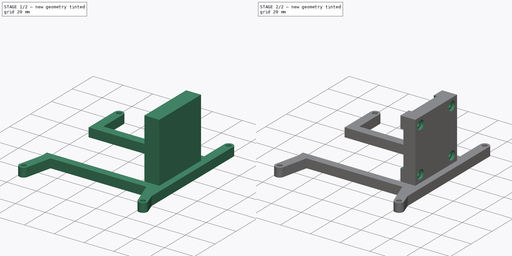
[diagram: build sequence overview — one tinted view per stage of 2, left to right]
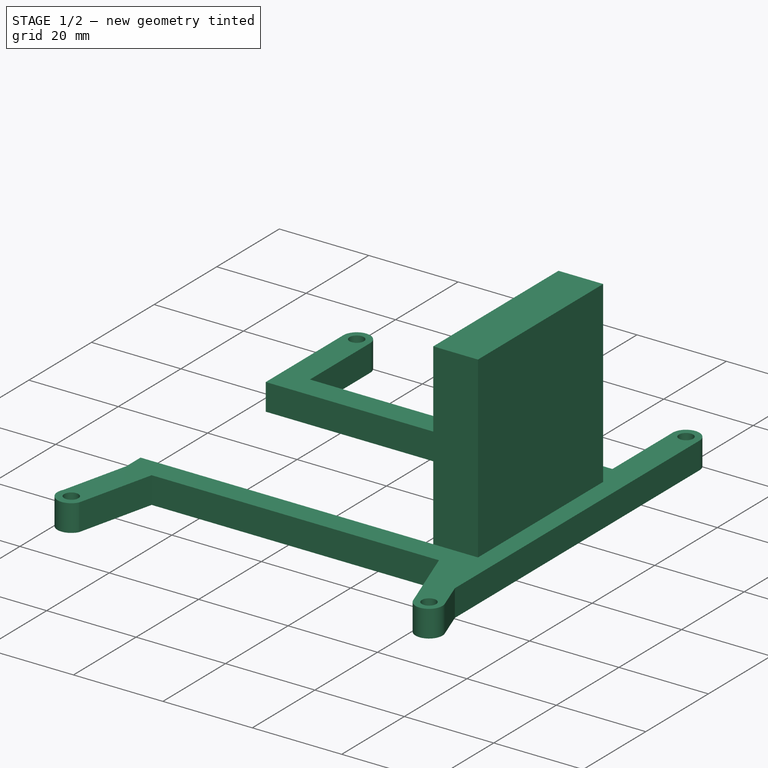
[diagram: stage 1 of 2 — iso view after this stage's code; geometry added in this stage tinted green]
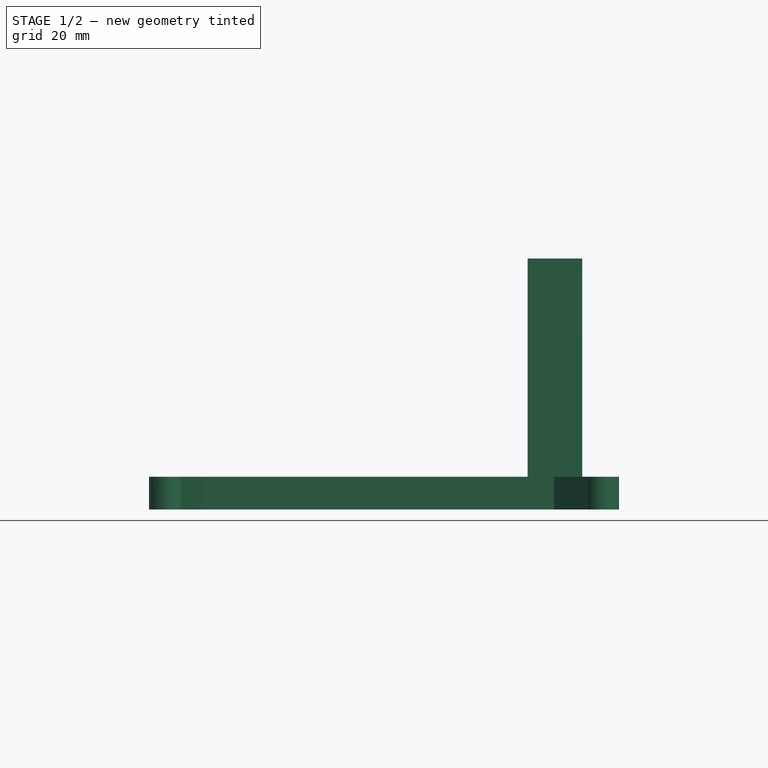
[diagram: stage 1 of 2 — front view after this stage's code; geometry added in this stage tinted green]
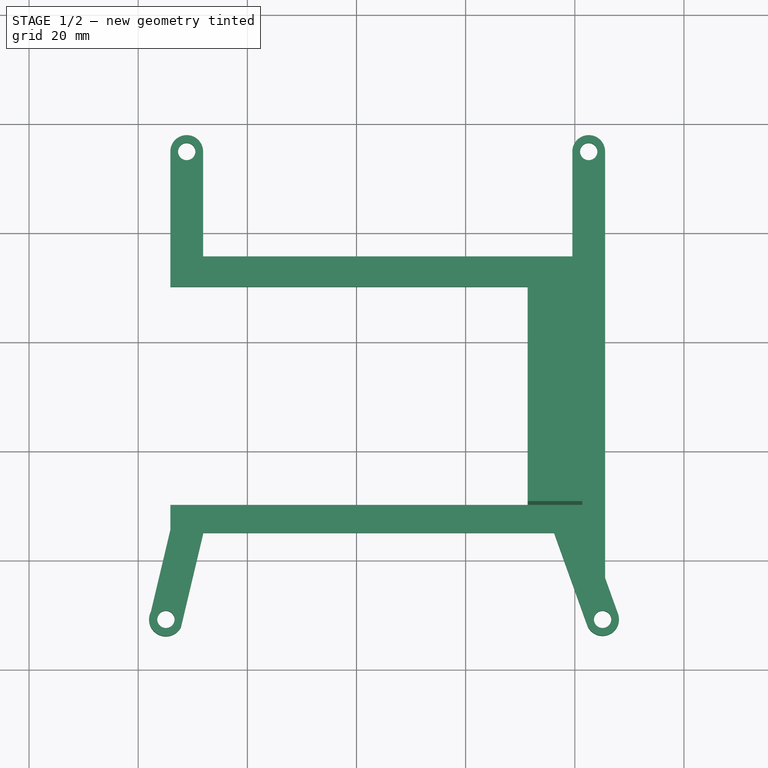
[diagram: stage 1 of 2 — top view after this stage's code; geometry added in this stage tinted green]
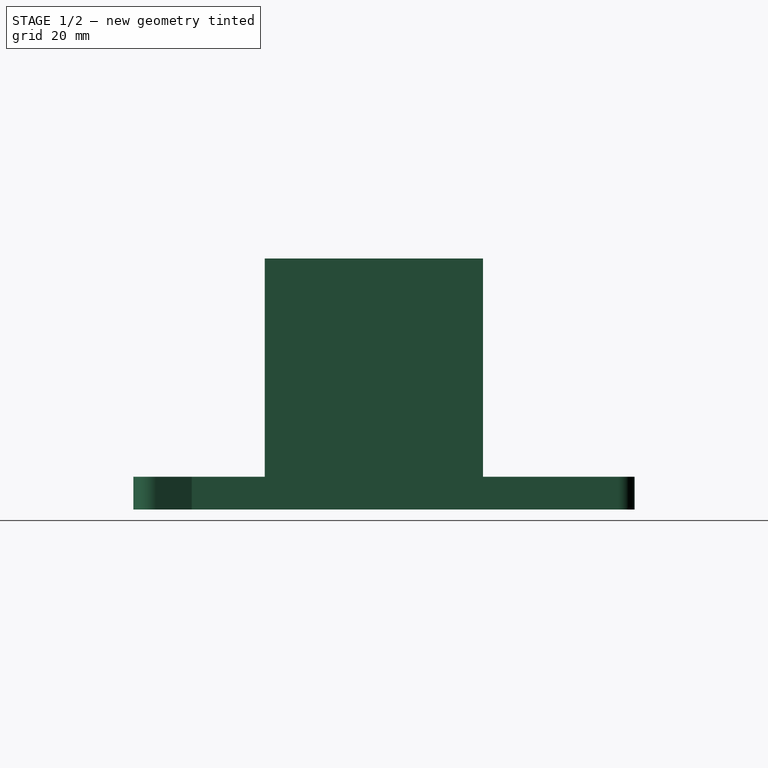
[diagram: stage 1 of 2 — right view after this stage's code; geometry added in this stage tinted green]
FCSTD DOCUMENT  (FreeCAD 0.18R16158 (Git))
Label: cam_holder_arms
License: All rights reserved
LicenseURL: http://en.wikipedia.org/wiki/All_rights_reserved
objects: Part::Feature×8, App::Part×6, Sketcher::SketchObject×6, PartDesign::Pad×2, PartDesign::Pocket×1, PartDesign::Hole×1, PartDesign::Body×1
note: 23 computed .brp shape members not serialized (recipe doc carries the construction recipe); baked Part::Feature solids carry a one-line shape summary decoded from their .brp

FEATURE [Part::Feature] Part__Feature605  label="COMPOUND032"
  shape: bbox 66.55 x 8.509 x 4.953 mm, 478 faces (baked)
FEATURE [Part::Feature] Part__Feature606  label="COMPOUND033"
  shape: bbox 65.79 x 19.68 x 4.699 mm, 1046 faces (baked)
FEATURE [Part::Feature] Part__Feature607  label="COMPOUND034"
  shape: bbox 66.04 x 2.54 x 5.08 mm, 682 faces (baked)
FEATURE [App::Part] COMPOUND008  label="COMPOUND035"
  Group = -> [Part__Feature605,Part__Feature606,Part__Feature607]
  Origin = -> Origin462
FEATURE [App::Part] ESQ_126_39_G_D004  label="ESQ-126-39-G-D004"
  Group = -> [COMPOUND008]
  Origin = -> Origin463
  Placement = pos=(45.72,-11.45,4.25) rot=(0,0.707107,0.707107;3.14159rad)
FEATURE [Part::Feature] Part__Feature608  label="COMPOUND036"
  shape: bbox 66.55 x 8.509 x 4.953 mm, 478 faces (baked)
FEATURE [Part::Feature] Part__Feature609  label="COMPOUND037"
  shape: bbox 65.79 x 19.68 x 4.699 mm, 1046 faces (baked)
FEATURE [Part::Feature] Part__Feature610  label="COMPOUND038"
  shape: bbox 66.04 x 2.54 x 5.08 mm, 682 faces (baked)
FEATURE [App::Part] COMPOUND009  label="COMPOUND039"
  Group = -> [Part__Feature608,Part__Feature609,Part__Feature610]
  Origin = -> Origin464
FEATURE [App::Part] ESQ_126_39_G_D005  label="ESQ-126-39-G-D005"
  Group = -> [COMPOUND009]
  Origin = -> Origin465
  Placement = pos=(45.72,-6.37,4.25) rot=(0,0.707107,0.707107;3.14159rad)
FEATURE [Part::Feature] Part__Feature611  label="COMPOUND040"
  shape: bbox 90.17 x 95.89 x 1.6 mm, 150 faces (baked)
FEATURE [App::Part] Open_CASCADE_STEP_translator_7_4_1002  label="devboard_blank"
  Group = -> [ESQ_126_39_G_D004,ESQ_126_39_G_D005,Part__Feature611]
  Origin = -> Origin466
  Placement = pos=(-49,-23,78) rot=(0.57735,-0.57735,-0.57735;4.18879rad)
FEATURE [Sketcher::SketchObject] Sketch  label="csk"
  sketch-geometry (148):
    g0: LineSegment StartX=1.92 StartY=-38.29 StartZ=0 EndX=1.92 EndY=-56.88 EndZ=0
    g1: ArcOfCircle CenterX=0.72 CenterY=-38.29 CenterZ=0 NormalX=0 NormalY=0 NormalZ=1 AngleXU=0 Radius=1.2 StartAngle=0 EndAngle=1.5708
    g2: ArcOfCircle CenterX=0.72 CenterY=-56.88 CenterZ=0 NormalX=0 NormalY=0 NormalZ=1 AngleXU=0 Radius=1.2 StartAngle=4.71239 EndAngle=6.28319
    g3: LineSegment StartX=0.72 StartY=-58.08 StartZ=0 EndX=0.7 EndY=-58.08 EndZ=0
    g4: ArcOfCircle CenterX=0.7 CenterY=-58.78 CenterZ=0 NormalX=0 NormalY=0 NormalZ=1 AngleXU=0 Radius=0.7 StartAngle=1.5708 EndAngle=3.14159
    g5: LineSegment StartX=-2.9e-15 StartY=-58.78 StartZ=0 EndX=0 EndY=-94.69 EndZ=0
    g6: ArcOfCircle CenterX=1.2 CenterY=-94.69 CenterZ=0 NormalX=0 NormalY=0 NormalZ=1 AngleXU=0 Radius=1.2 StartAngle=3.14159 EndAngle=4.71239
    g7: LineSegment StartX=1.2 StartY=-95.89 StartZ=0 EndX=35.47 EndY=-95.89 EndZ=0
    g8: ArcOfCircle CenterX=35.47 CenterY=-94.69 CenterZ=0 NormalX=0 NormalY=0 NormalZ=1 AngleXU=0 Radius=1.2 StartAngle=4.71239 EndAngle=6.28319
    g9: LineSegment StartX=36.67 StartY=-94.69 StartZ=0 EndX=36.67 EndY=-94.17 EndZ=0
    g10: ArcOfCircle CenterX=37.87 CenterY=-94.17 CenterZ=0 NormalX=0 NormalY=0 NormalZ=1 AngleXU=0 Radius=1.2 StartAngle=1.5708 EndAngle=3.14159
    g11: LineSegment StartX=37.87 StartY=-92.97 StartZ=0 EndX=55.19 EndY=-92.97 EndZ=0
    g12: ArcOfCircle CenterX=55.19 CenterY=-94.17 CenterZ=0 NormalX=0 NormalY=0 NormalZ=1 AngleXU=0 Radius=1.2 StartAngle=0 EndAngle=1.5708
    g13: LineSegment StartX=56.39 StartY=-94.17 StartZ=0 EndX=56.39 EndY=-94.69 EndZ=0
    g14: ArcOfCircle CenterX=57.59 CenterY=-94.69 CenterZ=0 NormalX=0 NormalY=0 NormalZ=1 AngleXU=0 Radius=1.2 StartAngle=3.14159 EndAngle=4.71239
    g15: LineSegment StartX=57.59 StartY=-95.89 StartZ=0 EndX=88.97 EndY=-95.89 EndZ=0
    g16: ArcOfCircle CenterX=88.97 CenterY=-94.69 CenterZ=0 NormalX=0 NormalY=0 NormalZ=1 AngleXU=0 Radius=1.2 StartAngle=4.71239 EndAngle=6.28319
    g17: LineSegment StartX=90.17 StartY=-94.69 StartZ=0 EndX=90.17 EndY=-86.995 EndZ=0
    g18: LineSegment StartX=90.17 StartY=-86.995 StartZ=0 EndX=88.392 EndY=-85.217 EndZ=0
    g19: LineSegment StartX=88.392 StartY=-85.217 StartZ=0 EndX=88.392 EndY=-50.038 EndZ=0
    g20: LineSegment StartX=88.392 StartY=-50.038 StartZ=0 EndX=90.17 EndY=-48.26 EndZ=0
    g21: LineSegment StartX=90.17 StartY=-48.26 StartZ=0 EndX=90.17 EndY=-24.19 EndZ=0
    g22: ArcOfCircle CenterX=88.97 CenterY=-24.19 CenterZ=0 NormalX=0 NormalY=0 NormalZ=1 AngleXU=0 Radius=1.2 StartAngle=0 EndAngle=1.5708
    g23: LineSegment StartX=88.97 StartY=-22.99 StartZ=0 EndX=86.8 EndY=-22.99 EndZ=0
    g24: ArcOfCircle CenterX=86.8 CenterY=-21.79 CenterZ=0 NormalX=0 NormalY=0 NormalZ=1 AngleXU=0 Radius=1.2 StartAngle=3.14159 EndAngle=4.71239
    g25: LineSegment StartX=85.6 StartY=-21.79 StartZ=0 EndX=85.6 EndY=-1.2 EndZ=0
    g26: ArcOfCircle CenterX=84.4 CenterY=-1.2 CenterZ=0 NormalX=0 NormalY=0 NormalZ=1 AngleXU=0 Radius=1.2 StartAngle=0 EndAngle=1.5708
    g27: LineSegment StartX=84.4 StartY=-1.13e-14 StartZ=0 EndX=57.59 EndY=-1e-16 EndZ=0
    g28: ArcOfCircle CenterX=57.59 CenterY=-1.2 CenterZ=0 NormalX=0 NormalY=0 NormalZ=1 AngleXU=0 Radius=1.2 StartAngle=1.5708 EndAngle=3.14159
    g29: LineSegment StartX=56.39 StartY=-1.2 StartZ=0 EndX=56.39 EndY=-1.73 EndZ=0
    g30: ArcOfCircle CenterX=55.19 CenterY=-1.73 CenterZ=0 NormalX=0 NormalY=0 NormalZ=1 AngleXU=0 Radius=1.2 StartAngle=4.71239 EndAngle=6.28319
    g31: LineSegment StartX=55.19 StartY=-2.93 StartZ=0 EndX=37.27 EndY=-2.93 EndZ=0
    g32: ArcOfCircle CenterX=37.27 CenterY=-1.73 CenterZ=0 NormalX=0 NormalY=0 NormalZ=1 AngleXU=0 Radius=1.2 StartAngle=3.14159 EndAngle=4.71239
    g33: LineSegment StartX=36.07 StartY=-1.73 StartZ=0 EndX=36.07 EndY=-1.2 EndZ=0
    g34: ArcOfCircle CenterX=34.87 CenterY=-1.2 CenterZ=0 NormalX=0 NormalY=0 NormalZ=1 AngleXU=0 Radius=1.2 StartAngle=0 EndAngle=1.5708
    g35: LineSegment StartX=34.87 StartY=2.9e-15 StartZ=0 EndX=1.2 EndY=-1e-16 EndZ=0
    g36: ArcOfCircle CenterX=1.2 CenterY=-1.2 CenterZ=0 NormalX=0 NormalY=0 NormalZ=1 AngleXU=0 Radius=1.2 StartAngle=1.5708 EndAngle=3.14159
    g37: LineSegment StartX=0 StartY=-1.2 StartZ=0 EndX=0 EndY=-36.39 EndZ=0
    g38: ArcOfCircle CenterX=0.7 CenterY=-36.39 CenterZ=0 NormalX=0 NormalY=0 NormalZ=1 AngleXU=0 Radius=0.7 StartAngle=3.14159 EndAngle=4.71239
    g39: LineSegment StartX=0.7 StartY=-37.09 StartZ=0 EndX=0.72 EndY=-37.09 EndZ=0
    g40: Circle CenterX=5.08 CenterY=-90.81 CenterZ=0 NormalX=0 NormalY=0 NormalZ=-1 AngleXU=0 Radius=1.59
    g41: Circle CenterX=85.09 CenterY=-90.81 CenterZ=0 NormalX=0 NormalY=0 NormalZ=-1 AngleXU=0 Radius=1.59
    g42: Circle CenterX=8.89 CenterY=-5.08 CenterZ=0 NormalX=0 NormalY=0 NormalZ=-1 AngleXU=0 Radius=1.59
    g43: Circle CenterX=13.97 CenterY=-12.7 CenterZ=0 NormalX=0 NormalY=0 NormalZ=-1 AngleXU=0 Radius=0.5
    g44: Circle CenterX=16.51 CenterY=-12.7 CenterZ=0 NormalX=0 NormalY=0 NormalZ=-1 AngleXU=0 Radius=0.5
    g45: Circle CenterX=19.05 CenterY=-12.7 CenterZ=0 NormalX=0 NormalY=0 NormalZ=-1 AngleXU=0 Radius=0.5
    g46: Circle CenterX=13.97 CenterY=-10.16 CenterZ=0 NormalX=0 NormalY=0 NormalZ=-1 AngleXU=0 Radius=0.5
    g47: Circle CenterX=16.51 CenterY=-10.16 CenterZ=0 NormalX=0 NormalY=0 NormalZ=-1 AngleXU=0 Radius=0.5
    g48: Circle CenterX=19.05 CenterY=-10.16 CenterZ=0 NormalX=0 NormalY=0 NormalZ=-1 AngleXU=0 Radius=0.5
    g49: Circle CenterX=21.59 CenterY=-12.7 CenterZ=0 NormalX=0 NormalY=0 NormalZ=-1 AngleXU=0 Radius=0.5
    g50: Circle CenterX=24.13 CenterY=-12.7 CenterZ=0 NormalX=0 NormalY=0 NormalZ=-1 AngleXU=0 Radius=0.5
    g51: Circle CenterX=21.59 CenterY=-10.16 CenterZ=0 NormalX=0 NormalY=0 NormalZ=-1 AngleXU=0 Radius=0.5
    g52: Circle CenterX=24.13 CenterY=-10.16 CenterZ=0 NormalX=0 NormalY=0 NormalZ=-1 AngleXU=0 Radius=0.5
    g53: Circle CenterX=13.97 CenterY=-7.62 CenterZ=0 NormalX=0 NormalY=0 NormalZ=-1 AngleXU=0 Radius=0.5
    g54: Circle CenterX=16.51 CenterY=-7.62 CenterZ=0 NormalX=0 NormalY=0 NormalZ=-1 AngleXU=0 Radius=0.5
    g55: Circle CenterX=19.05 CenterY=-7.62 CenterZ=0 NormalX=0 NormalY=0 NormalZ=-1 AngleXU=0 Radius=0.5
    g56: Circle CenterX=13.97 CenterY=-5.08 CenterZ=0 NormalX=0 NormalY=0 NormalZ=-1 AngleXU=0 Radius=0.5
    g57: Circle CenterX=16.51 CenterY=-5.08 CenterZ=0 NormalX=0 NormalY=0 NormalZ=-1 AngleXU=0 Radius=0.5
    g58: Circle CenterX=19.05 CenterY=-5.08 CenterZ=0 NormalX=0 NormalY=0 NormalZ=-1 AngleXU=0 Radius=0.5
    g59: Circle CenterX=21.59 CenterY=-7.62 CenterZ=0 NormalX=0 NormalY=0 NormalZ=-1 AngleXU=0 Radius=0.5
    g60: Circle CenterX=24.13 CenterY=-7.62 CenterZ=0 NormalX=0 NormalY=0 NormalZ=-1 AngleXU=0 Radius=0.5
    g61: Circle CenterX=21.59 CenterY=-5.08 CenterZ=0 NormalX=0 NormalY=0 NormalZ=-1 AngleXU=0 Radius=0.5
    g62: Circle CenterX=24.13 CenterY=-5.08 CenterZ=0 NormalX=0 NormalY=0 NormalZ=-1 AngleXU=0 Radius=0.5
    g63: Circle CenterX=26.67 CenterY=-12.7 CenterZ=0 NormalX=0 NormalY=0 NormalZ=-1 AngleXU=0 Radius=0.5
    g64: Circle CenterX=29.21 CenterY=-12.7 CenterZ=0 NormalX=0 NormalY=0 NormalZ=-1 AngleXU=0 Radius=0.5
    g65: Circle CenterX=26.67 CenterY=-10.16 CenterZ=0 NormalX=0 NormalY=0 NormalZ=-1 AngleXU=0 Radius=0.5
    g66: Circle CenterX=29.21 CenterY=-10.16 CenterZ=0 NormalX=0 NormalY=0 NormalZ=-1 AngleXU=0 Radius=0.5
    g67: Circle CenterX=31.75 CenterY=-12.7 CenterZ=0 NormalX=0 NormalY=0 NormalZ=-1 AngleXU=0 Radius=0.5
    g68: Circle CenterX=34.29 CenterY=-12.7 CenterZ=0 NormalX=0 NormalY=0 NormalZ=-1 AngleXU=0 Radius=0.5
    g69: Circle CenterX=31.75 CenterY=-10.16 CenterZ=0 NormalX=0 NormalY=0 NormalZ=-1 AngleXU=0 Radius=0.5
    g70: Circle CenterX=34.29 CenterY=-10.16 CenterZ=0 NormalX=0 NormalY=0 NormalZ=-1 AngleXU=0 Radius=0.5
    g71: Circle CenterX=26.67 CenterY=-7.62 CenterZ=0 NormalX=0 NormalY=0 NormalZ=-1 AngleXU=0 Radius=0.5
    g72: Circle CenterX=29.21 CenterY=-7.62 CenterZ=0 NormalX=0 NormalY=0 NormalZ=-1 AngleXU=0 Radius=0.5
    g73: Circle CenterX=26.67 CenterY=-5.08 CenterZ=0 NormalX=0 NormalY=0 NormalZ=-1 AngleXU=0 Radius=0.5
    g74: Circle CenterX=29.21 CenterY=-5.08 CenterZ=0 NormalX=0 NormalY=0 NormalZ=-1 AngleXU=0 Radius=0.5
    g75: Circle CenterX=31.75 CenterY=-7.62 CenterZ=0 NormalX=0 NormalY=0 NormalZ=-1 AngleXU=0 Radius=0.5
    g76: Circle CenterX=34.29 CenterY=-7.62 CenterZ=0 NormalX=0 NormalY=0 NormalZ=-1 AngleXU=0 Radius=0.5
    g77: Circle CenterX=31.75 CenterY=-5.08 CenterZ=0 NormalX=0 NormalY=0 NormalZ=-1 AngleXU=0 Radius=0.5
    g78: Circle CenterX=34.29 CenterY=-5.08 CenterZ=0 NormalX=0 NormalY=0 NormalZ=-1 AngleXU=0 Radius=0.5
    g79: Circle CenterX=36.83 CenterY=-12.7 CenterZ=0 NormalX=0 NormalY=0 NormalZ=-1 AngleXU=0 Radius=0.5
    g80: Circle CenterX=39.37 CenterY=-12.7 CenterZ=0 NormalX=0 NormalY=0 NormalZ=-1 AngleXU=0 Radius=0.5
    g81: Circle CenterX=36.83 CenterY=-10.16 CenterZ=0 NormalX=0 NormalY=0 NormalZ=-1 AngleXU=0 Radius=0.5
    g82: Circle CenterX=39.37 CenterY=-10.16 CenterZ=0 NormalX=0 NormalY=0 NormalZ=-1 AngleXU=0 Radius=0.5
    g83: Circle CenterX=41.91 CenterY=-12.7 CenterZ=0 NormalX=0 NormalY=0 NormalZ=-1 AngleXU=0 Radius=0.5
    g84: Circle CenterX=44.45 CenterY=-12.7 CenterZ=0 NormalX=0 NormalY=0 NormalZ=-1 AngleXU=0 Radius=0.5
    g85: Circle CenterX=41.91 CenterY=-10.16 CenterZ=0 NormalX=0 NormalY=0 NormalZ=-1 AngleXU=0 Radius=0.5
    g86: Circle CenterX=44.45 CenterY=-10.16 CenterZ=0 NormalX=0 NormalY=0 NormalZ=-1 AngleXU=0 Radius=0.5
    g87: Circle CenterX=36.83 CenterY=-7.62 CenterZ=0 NormalX=0 NormalY=0 NormalZ=-1 AngleXU=0 Radius=0.5
    g88: Circle CenterX=39.37 CenterY=-7.62 CenterZ=0 NormalX=0 NormalY=0 NormalZ=-1 AngleXU=0 Radius=0.5
    g89: Circle CenterX=36.83 CenterY=-5.08 CenterZ=0 NormalX=0 NormalY=0 NormalZ=-1 AngleXU=0 Radius=0.5
    g90: Circle CenterX=39.37 CenterY=-5.08 CenterZ=0 NormalX=0 NormalY=0 NormalZ=-1 AngleXU=0 Radius=0.5
    g91: Circle CenterX=41.91 CenterY=-7.62 CenterZ=0 NormalX=0 NormalY=0 NormalZ=-1 AngleXU=0 Radius=0.5
    g92: Circle CenterX=44.45 CenterY=-7.62 CenterZ=0 NormalX=0 NormalY=0 NormalZ=-1 AngleXU=0 Radius=0.5
    g93: Circle CenterX=41.91 CenterY=-5.08 CenterZ=0 NormalX=0 NormalY=0 NormalZ=-1 AngleXU=0 Radius=0.5
    g94: Circle CenterX=44.45 CenterY=-5.08 CenterZ=0 NormalX=0 NormalY=0 NormalZ=-1 AngleXU=0 Radius=0.5
    g95: Circle CenterX=46.99 CenterY=-12.7 CenterZ=0 NormalX=0 NormalY=0 NormalZ=-1 AngleXU=0 Radius=0.5
    g96: Circle CenterX=49.53 CenterY=-12.7 CenterZ=0 NormalX=0 NormalY=0 NormalZ=-1 AngleXU=0 Radius=0.5
    g97: Circle CenterX=46.99 CenterY=-10.16 CenterZ=0 NormalX=0 NormalY=0 NormalZ=-1 AngleXU=0 Radius=0.5
    g98: Circle CenterX=49.53 CenterY=-10.16 CenterZ=0 NormalX=0 NormalY=0 NormalZ=-1 AngleXU=0 Radius=0.5
    g99: Circle CenterX=52.07 CenterY=-12.7 CenterZ=0 NormalX=0 NormalY=0 NormalZ=-1 AngleXU=0 Radius=0.5
    g100: Circle CenterX=54.61 CenterY=-12.7 CenterZ=0 NormalX=0 NormalY=0 NormalZ=-1 AngleXU=0 Radius=0.5
    g101: Circle CenterX=52.07 CenterY=-10.16 CenterZ=0 NormalX=0 NormalY=0 NormalZ=-1 AngleXU=0 Radius=0.5
    g102: Circle CenterX=54.61 CenterY=-10.16 CenterZ=0 NormalX=0 NormalY=0 NormalZ=-1 AngleXU=0 Radius=0.5
    g103: Circle CenterX=46.99 CenterY=-7.62 CenterZ=0 NormalX=0 NormalY=0 NormalZ=-1 AngleXU=0 Radius=0.5
    g104: Circle CenterX=49.53 CenterY=-7.62 CenterZ=0 NormalX=0 NormalY=0 NormalZ=-1 AngleXU=0 Radius=0.5
    g105: Circle CenterX=46.99 CenterY=-5.08 CenterZ=0 NormalX=0 NormalY=0 NormalZ=-1 AngleXU=0 Radius=0.5
    g106: Circle CenterX=49.53 CenterY=-5.08 CenterZ=0 NormalX=0 NormalY=0 NormalZ=-1 AngleXU=0 Radius=0.5
    g107: Circle CenterX=52.07 CenterY=-7.62 CenterZ=0 NormalX=0 NormalY=0 NormalZ=-1 AngleXU=0 Radius=0.5
    g108: Circle CenterX=54.61 CenterY=-7.62 CenterZ=0 NormalX=0 NormalY=0 NormalZ=-1 AngleXU=0 Radius=0.5
    g109: Circle CenterX=52.07 CenterY=-5.08 CenterZ=0 NormalX=0 NormalY=0 NormalZ=-1 AngleXU=0 Radius=0.5
    g110: Circle CenterX=54.61 CenterY=-5.08 CenterZ=0 NormalX=0 NormalY=0 NormalZ=-1 AngleXU=0 Radius=0.5
    g111: Circle CenterX=57.15 CenterY=-12.7 CenterZ=0 NormalX=0 NormalY=0 NormalZ=-1 AngleXU=0 Radius=0.5
    g112: Circle CenterX=59.69 CenterY=-12.7 CenterZ=0 NormalX=0 NormalY=0 NormalZ=-1 AngleXU=0 Radius=0.5
    g113: Circle CenterX=57.15 CenterY=-10.16 CenterZ=0 NormalX=0 NormalY=0 NormalZ=-1 AngleXU=0 Radius=0.5
    g114: Circle CenterX=59.69 CenterY=-10.16 CenterZ=0 NormalX=0 NormalY=0 NormalZ=-1 AngleXU=0 Radius=0.5
    g115: Circle CenterX=62.23 CenterY=-12.7 CenterZ=0 NormalX=0 NormalY=0 NormalZ=-1 AngleXU=0 Radius=0.5
    g116: Circle CenterX=64.77 CenterY=-12.7 CenterZ=0 NormalX=0 NormalY=0 NormalZ=-1 AngleXU=0 Radius=0.5
    g117: Circle CenterX=62.23 CenterY=-10.16 CenterZ=0 NormalX=0 NormalY=0 NormalZ=-1 AngleXU=0 Radius=0.5
    g118: Circle CenterX=64.77 CenterY=-10.16 CenterZ=0 NormalX=0 NormalY=0 NormalZ=-1 AngleXU=0 Radius=0.5
    g119: Circle CenterX=57.15 CenterY=-7.62 CenterZ=0 NormalX=0 NormalY=0 NormalZ=-1 AngleXU=0 Radius=0.5
    g120: Circle CenterX=59.69 CenterY=-7.62 CenterZ=0 NormalX=0 NormalY=0 NormalZ=-1 AngleXU=0 Radius=0.5
    g121: Circle CenterX=57.15 CenterY=-5.08 CenterZ=0 NormalX=0 NormalY=0 NormalZ=-1 AngleXU=0 Radius=0.5
    g122: Circle CenterX=59.69 CenterY=-5.08 CenterZ=0 NormalX=0 NormalY=0 NormalZ=-1 AngleXU=0 Radius=0.5
    g123: Circle CenterX=62.23 CenterY=-7.62 CenterZ=0 NormalX=0 NormalY=0 NormalZ=-1 AngleXU=0 Radius=0.5
    g124: Circle CenterX=64.77 CenterY=-7.62 CenterZ=0 NormalX=0 NormalY=0 NormalZ=-1 AngleXU=0 Radius=0.5
    g125: Circle CenterX=62.23 CenterY=-5.08 CenterZ=0 NormalX=0 NormalY=0 NormalZ=-1 AngleXU=0 Radius=0.5
    g126: Circle CenterX=64.77 CenterY=-5.08 CenterZ=0 NormalX=0 NormalY=0 NormalZ=-1 AngleXU=0 Radius=0.5
    g127: Circle CenterX=67.31 CenterY=-12.7 CenterZ=0 NormalX=0 NormalY=0 NormalZ=-1 AngleXU=0 Radius=0.5
    g128: Circle CenterX=69.85 CenterY=-12.7 CenterZ=0 NormalX=0 NormalY=0 NormalZ=-1 AngleXU=0 Radius=0.5
    g129: Circle CenterX=67.31 CenterY=-10.16 CenterZ=0 NormalX=0 NormalY=0 NormalZ=-1 AngleXU=0 Radius=0.5
    g130: Circle CenterX=69.85 CenterY=-10.16 CenterZ=0 NormalX=0 NormalY=0 NormalZ=-1 AngleXU=0 Radius=0.5
    g131: Circle CenterX=72.39 CenterY=-12.7 CenterZ=0 NormalX=0 NormalY=0 NormalZ=-1 AngleXU=0 Radius=0.5
    g132: Circle CenterX=74.93 CenterY=-12.7 CenterZ=0 NormalX=0 NormalY=0 NormalZ=-1 AngleXU=0 Radius=0.5
    g133: Circle CenterX=72.39 CenterY=-10.16 CenterZ=0 NormalX=0 NormalY=0 NormalZ=-1 AngleXU=0 Radius=0.5
    g134: Circle CenterX=74.93 CenterY=-10.16 CenterZ=0 NormalX=0 NormalY=0 NormalZ=-1 AngleXU=0 Radius=0.5
    g135: Circle CenterX=67.31 CenterY=-7.62 CenterZ=0 NormalX=0 NormalY=0 NormalZ=-1 AngleXU=0 Radius=0.5
    g136: Circle CenterX=69.85 CenterY=-7.62 CenterZ=0 NormalX=0 NormalY=0 NormalZ=-1 AngleXU=0 Radius=0.5
    g137: Circle CenterX=67.31 CenterY=-5.08 CenterZ=0 NormalX=0 NormalY=0 NormalZ=-1 AngleXU=0 Radius=0.5
    g138: Circle CenterX=69.85 CenterY=-5.08 CenterZ=0 NormalX=0 NormalY=0 NormalZ=-1 AngleXU=0 Radius=0.5
    g139: Circle CenterX=72.39 CenterY=-7.62 CenterZ=0 NormalX=0 NormalY=0 NormalZ=-1 AngleXU=0 Radius=0.5
    g140: Circle CenterX=74.93 CenterY=-7.62 CenterZ=0 NormalX=0 NormalY=0 NormalZ=-1 AngleXU=0 Radius=0.5
    g141: Circle CenterX=72.39 CenterY=-5.08 CenterZ=0 NormalX=0 NormalY=0 NormalZ=-1 AngleXU=0 Radius=0.5
    g142: Circle CenterX=74.93 CenterY=-5.08 CenterZ=0 NormalX=0 NormalY=0 NormalZ=-1 AngleXU=0 Radius=0.5
    g143: Circle CenterX=77.47 CenterY=-12.7 CenterZ=0 NormalX=0 NormalY=0 NormalZ=-1 AngleXU=0 Radius=0.5
    g144: Circle CenterX=77.47 CenterY=-10.16 CenterZ=0 NormalX=0 NormalY=0 NormalZ=-1 AngleXU=0 Radius=0.5
    g145: Circle CenterX=77.47 CenterY=-7.62 CenterZ=0 NormalX=0 NormalY=0 NormalZ=-1 AngleXU=0 Radius=0.5
    g146: Circle CenterX=77.47 CenterY=-5.08 CenterZ=0 NormalX=0 NormalY=0 NormalZ=-1 AngleXU=0 Radius=0.5
    g147: Circle CenterX=82.55 CenterY=-5.08 CenterZ=0 NormalX=0 NormalY=0 NormalZ=-1 AngleXU=0 Radius=1.59
  constraints (8):
    c: DistanceX(g-1,g42) = 8.89
    c: DistanceX(g-1,g147) = 82.55
    c: DistanceY(g40,g-1) = 90.81
    c: DistanceY(g42,g-1) = 5.08
    c: Horizontal(g42,g147)
    c: DistanceX(g-1,g40) = 5.08
    c: Horizontal(g41,g40)
    c: DistanceX(g-1,g41) = 85.09
FEATURE [Part::Feature] Shape
  shape: bbox 90.17 x 95.89 x 2e-07 mm, 0 faces, 0 solids (baked)
FEATURE [Sketcher::SketchObject] Sketch001
  sketch-geometry (148):
    g0: LineSegment StartX=1.92 StartY=-38.29 StartZ=0 EndX=1.92 EndY=-56.88 EndZ=0
    g1: ArcOfCircle CenterX=0.72 CenterY=-38.29 CenterZ=0 NormalX=0 NormalY=0 NormalZ=1 AngleXU=0 Radius=1.2 StartAngle=0 EndAngle=1.5708
    g2: ArcOfCircle CenterX=0.72 CenterY=-56.88 CenterZ=0 NormalX=0 NormalY=0 NormalZ=1 AngleXU=0 Radius=1.2 StartAngle=4.71239 EndAngle=6.28319
    g3: LineSegment StartX=0.72 StartY=-58.08 StartZ=0 EndX=0.7 EndY=-58.08 EndZ=0
    g4: ArcOfCircle CenterX=0.7 CenterY=-58.78 CenterZ=0 NormalX=0 NormalY=0 NormalZ=1 AngleXU=0 Radius=0.7 StartAngle=1.5708 EndAngle=3.14159
    g5: LineSegment StartX=-2.9e-15 StartY=-58.78 StartZ=0 EndX=0 EndY=-94.69 EndZ=0
    g6: ArcOfCircle CenterX=1.2 CenterY=-94.69 CenterZ=0 NormalX=0 NormalY=0 NormalZ=1 AngleXU=0 Radius=1.2 StartAngle=3.14159 EndAngle=4.71239
    g7: LineSegment StartX=1.2 StartY=-95.89 StartZ=0 EndX=35.47 EndY=-95.89 EndZ=0
    g8: ArcOfCircle CenterX=35.47 CenterY=-94.69 CenterZ=0 NormalX=0 NormalY=0 NormalZ=1 AngleXU=0 Radius=1.2 StartAngle=4.71239 EndAngle=6.28319
    g9: LineSegment StartX=36.67 StartY=-94.69 StartZ=0 EndX=36.67 EndY=-94.17 EndZ=0
    g10: ArcOfCircle CenterX=37.87 CenterY=-94.17 CenterZ=0 NormalX=0 NormalY=0 NormalZ=1 AngleXU=0 Radius=1.2 StartAngle=1.5708 EndAngle=3.14159
    g11: LineSegment StartX=37.87 StartY=-92.97 StartZ=0 EndX=55.19 EndY=-92.97 EndZ=0
    g12: ArcOfCircle CenterX=55.19 CenterY=-94.17 CenterZ=0 NormalX=0 NormalY=0 NormalZ=1 AngleXU=0 Radius=1.2 StartAngle=0 EndAngle=1.5708
    g13: LineSegment StartX=56.39 StartY=-94.17 StartZ=0 EndX=56.39 EndY=-94.69 EndZ=0
    g14: ArcOfCircle CenterX=57.59 CenterY=-94.69 CenterZ=0 NormalX=0 NormalY=0 NormalZ=1 AngleXU=0 Radius=1.2 StartAngle=3.14159 EndAngle=4.71239
    g15: LineSegment StartX=57.59 StartY=-95.89 StartZ=0 EndX=88.97 EndY=-95.89 EndZ=0
    g16: ArcOfCircle CenterX=88.97 CenterY=-94.69 CenterZ=0 NormalX=0 NormalY=0 NormalZ=1 AngleXU=0 Radius=1.2 StartAngle=4.71239 EndAngle=6.28319
    g17: LineSegment StartX=90.17 StartY=-94.69 StartZ=0 EndX=90.17 EndY=-86.995 EndZ=0
    g18: LineSegment StartX=90.17 StartY=-86.995 StartZ=0 EndX=88.392 EndY=-85.217 EndZ=0
    g19: LineSegment StartX=88.392 StartY=-85.217 StartZ=0 EndX=88.392 EndY=-50.038 EndZ=0
    g20: LineSegment StartX=88.392 StartY=-50.038 StartZ=0 EndX=90.17 EndY=-48.26 EndZ=0
    g21: LineSegment StartX=90.17 StartY=-48.26 StartZ=0 EndX=90.17 EndY=-24.19 EndZ=0
    g22: ArcOfCircle CenterX=88.97 CenterY=-24.19 CenterZ=0 NormalX=0 NormalY=0 NormalZ=1 AngleXU=0 Radius=1.2 StartAngle=0 EndAngle=1.5708
    g23: LineSegment StartX=88.97 StartY=-22.99 StartZ=0 EndX=86.8 EndY=-22.99 EndZ=0
    g24: ArcOfCircle CenterX=86.8 CenterY=-21.79 CenterZ=0 NormalX=0 NormalY=0 NormalZ=1 AngleXU=0 Radius=1.2 StartAngle=3.14159 EndAngle=4.71239
    g25: LineSegment StartX=85.6 StartY=-21.79 StartZ=0 EndX=85.6 EndY=-1.2 EndZ=0
    g26: ArcOfCircle CenterX=84.4 CenterY=-1.2 CenterZ=0 NormalX=0 NormalY=0 NormalZ=1 AngleXU=0 Radius=1.2 StartAngle=0 EndAngle=1.5708
    g27: LineSegment StartX=84.4 StartY=-1.13e-14 StartZ=0 EndX=57.59 EndY=-1e-16 EndZ=0
    g28: ArcOfCircle CenterX=57.59 CenterY=-1.2 CenterZ=0 NormalX=0 NormalY=0 NormalZ=1 AngleXU=0 Radius=1.2 StartAngle=1.5708 EndAngle=3.14159
    g29: LineSegment StartX=56.39 StartY=-1.2 StartZ=0 EndX=56.39 EndY=-1.73 EndZ=0
    g30: ArcOfCircle CenterX=55.19 CenterY=-1.73 CenterZ=0 NormalX=0 NormalY=0 NormalZ=1 AngleXU=0 Radius=1.2 StartAngle=4.71239 EndAngle=6.28319
    g31: LineSegment StartX=55.19 StartY=-2.93 StartZ=0 EndX=37.27 EndY=-2.93 EndZ=0
    g32: ArcOfCircle CenterX=37.27 CenterY=-1.73 CenterZ=0 NormalX=0 NormalY=0 NormalZ=1 AngleXU=0 Radius=1.2 StartAngle=3.14159 EndAngle=4.71239
    g33: LineSegment StartX=36.07 StartY=-1.73 StartZ=0 EndX=36.07 EndY=-1.2 EndZ=0
    g34: ArcOfCircle CenterX=34.87 CenterY=-1.2 CenterZ=0 NormalX=0 NormalY=0 NormalZ=1 AngleXU=0 Radius=1.2 StartAngle=0 EndAngle=1.5708
    g35: LineSegment StartX=34.87 StartY=2.9e-15 StartZ=0 EndX=1.2 EndY=-1e-16 EndZ=0
    g36: ArcOfCircle CenterX=1.2 CenterY=-1.2 CenterZ=0 NormalX=0 NormalY=0 NormalZ=1 AngleXU=0 Radius=1.2 StartAngle=1.5708 EndAngle=3.14159
    g37: LineSegment StartX=0 StartY=-1.2 StartZ=0 EndX=0 EndY=-36.39 EndZ=0
    g38: ArcOfCircle CenterX=0.7 CenterY=-36.39 CenterZ=0 NormalX=0 NormalY=0 NormalZ=1 AngleXU=0 Radius=0.7 StartAngle=3.14159 EndAngle=4.71239
    g39: LineSegment StartX=0.7 StartY=-37.09 StartZ=0 EndX=0.72 EndY=-37.09 EndZ=0
    g40: Circle CenterX=5.08 CenterY=-90.81 CenterZ=0 NormalX=0 NormalY=0 NormalZ=-1 AngleXU=0 Radius=1.59
    g41: Circle CenterX=85.09 CenterY=-90.81 CenterZ=0 NormalX=0 NormalY=0 NormalZ=-1 AngleXU=0 Radius=1.59
    g42: Circle CenterX=8.89 CenterY=-5.08 CenterZ=0 NormalX=0 NormalY=0 NormalZ=-1 AngleXU=0 Radius=1.59
    g43: Circle CenterX=13.97 CenterY=-12.7 CenterZ=0 NormalX=0 NormalY=0 NormalZ=-1 AngleXU=0 Radius=0.5
    g44: Circle CenterX=16.51 CenterY=-12.7 CenterZ=0 NormalX=0 NormalY=0 NormalZ=-1 AngleXU=0 Radius=0.5
    g45: Circle CenterX=19.05 CenterY=-12.7 CenterZ=0 NormalX=0 NormalY=0 NormalZ=-1 AngleXU=0 Radius=0.5
    g46: Circle CenterX=13.97 CenterY=-10.16 CenterZ=0 NormalX=0 NormalY=0 NormalZ=-1 AngleXU=0 Radius=0.5
    g47: Circle CenterX=16.51 CenterY=-10.16 CenterZ=0 NormalX=0 NormalY=0 NormalZ=-1 AngleXU=0 Radius=0.5
    g48: Circle CenterX=19.05 CenterY=-10.16 CenterZ=0 NormalX=0 NormalY=0 NormalZ=-1 AngleXU=0 Radius=0.5
    g49: Circle CenterX=21.59 CenterY=-12.7 CenterZ=0 NormalX=0 NormalY=0 NormalZ=-1 AngleXU=0 Radius=0.5
    g50: Circle CenterX=24.13 CenterY=-12.7 CenterZ=0 NormalX=0 NormalY=0 NormalZ=-1 AngleXU=0 Radius=0.5
    g51: Circle CenterX=21.59 CenterY=-10.16 CenterZ=0 NormalX=0 NormalY=0 NormalZ=-1 AngleXU=0 Radius=0.5
    g52: Circle CenterX=24.13 CenterY=-10.16 CenterZ=0 NormalX=0 NormalY=0 NormalZ=-1 AngleXU=0 Radius=0.5
    g53: Circle CenterX=13.97 CenterY=-7.62 CenterZ=0 NormalX=0 NormalY=0 NormalZ=-1 AngleXU=0 Radius=0.5
    g54: Circle CenterX=16.51 CenterY=-7.62 CenterZ=0 NormalX=0 NormalY=0 NormalZ=-1 AngleXU=0 Radius=0.5
    g55: Circle CenterX=19.05 CenterY=-7.62 CenterZ=0 NormalX=0 NormalY=0 NormalZ=-1 AngleXU=0 Radius=0.5
    g56: Circle CenterX=13.97 CenterY=-5.08 CenterZ=0 NormalX=0 NormalY=0 NormalZ=-1 AngleXU=0 Radius=0.5
    g57: Circle CenterX=16.51 CenterY=-5.08 CenterZ=0 NormalX=0 NormalY=0 NormalZ=-1 AngleXU=0 Radius=0.5
    g58: Circle CenterX=19.05 CenterY=-5.08 CenterZ=0 NormalX=0 NormalY=0 NormalZ=-1 AngleXU=0 Radius=0.5
    g59: Circle CenterX=21.59 CenterY=-7.62 CenterZ=0 NormalX=0 NormalY=0 NormalZ=-1 AngleXU=0 Radius=0.5
    g60: Circle CenterX=24.13 CenterY=-7.62 CenterZ=0 NormalX=0 NormalY=0 NormalZ=-1 AngleXU=0 Radius=0.5
    g61: Circle CenterX=21.59 CenterY=-5.08 CenterZ=0 NormalX=0 NormalY=0 NormalZ=-1 AngleXU=0 Radius=0.5
    g62: Circle CenterX=24.13 CenterY=-5.08 CenterZ=0 NormalX=0 NormalY=0 NormalZ=-1 AngleXU=0 Radius=0.5
    g63: Circle CenterX=26.67 CenterY=-12.7 CenterZ=0 NormalX=0 NormalY=0 NormalZ=-1 AngleXU=0 Radius=0.5
    g64: Circle CenterX=29.21 CenterY=-12.7 CenterZ=0 NormalX=0 NormalY=0 NormalZ=-1 AngleXU=0 Radius=0.5
    g65: Circle CenterX=26.67 CenterY=-10.16 CenterZ=0 NormalX=0 NormalY=0 NormalZ=-1 AngleXU=0 Radius=0.5
    g66: Circle CenterX=29.21 CenterY=-10.16 CenterZ=0 NormalX=0 NormalY=0 NormalZ=-1 AngleXU=0 Radius=0.5
    g67: Circle CenterX=31.75 CenterY=-12.7 CenterZ=0 NormalX=0 NormalY=0 NormalZ=-1 AngleXU=0 Radius=0.5
    g68: Circle CenterX=34.29 CenterY=-12.7 CenterZ=0 NormalX=0 NormalY=0 NormalZ=-1 AngleXU=0 Radius=0.5
    g69: Circle CenterX=31.75 CenterY=-10.16 CenterZ=0 NormalX=0 NormalY=0 NormalZ=-1 AngleXU=0 Radius=0.5
    g70: Circle CenterX=34.29 CenterY=-10.16 CenterZ=0 NormalX=0 NormalY=0 NormalZ=-1 AngleXU=0 Radius=0.5
    g71: Circle CenterX=26.67 CenterY=-7.62 CenterZ=0 NormalX=0 NormalY=0 NormalZ=-1 AngleXU=0 Radius=0.5
    g72: Circle CenterX=29.21 CenterY=-7.62 CenterZ=0 NormalX=0 NormalY=0 NormalZ=-1 AngleXU=0 Radius=0.5
    g73: Circle CenterX=26.67 CenterY=-5.08 CenterZ=0 NormalX=0 NormalY=0 NormalZ=-1 AngleXU=0 Radius=0.5
    g74: Circle CenterX=29.21 CenterY=-5.08 CenterZ=0 NormalX=0 NormalY=0 NormalZ=-1 AngleXU=0 Radius=0.5
    g75: Circle CenterX=31.75 CenterY=-7.62 CenterZ=0 NormalX=0 NormalY=0 NormalZ=-1 AngleXU=0 Radius=0.5
    g76: Circle CenterX=34.29 CenterY=-7.62 CenterZ=0 NormalX=0 NormalY=0 NormalZ=-1 AngleXU=0 Radius=0.5
    g77: Circle CenterX=31.75 CenterY=-5.08 CenterZ=0 NormalX=0 NormalY=0 NormalZ=-1 AngleXU=0 Radius=0.5
    g78: Circle CenterX=34.29 CenterY=-5.08 CenterZ=0 NormalX=0 NormalY=0 NormalZ=-1 AngleXU=0 Radius=0.5
    g79: Circle CenterX=36.83 CenterY=-12.7 CenterZ=0 NormalX=0 NormalY=0 NormalZ=-1 AngleXU=0 Radius=0.5
    g80: Circle CenterX=39.37 CenterY=-12.7 CenterZ=0 NormalX=0 NormalY=0 NormalZ=-1 AngleXU=0 Radius=0.5
    g81: Circle CenterX=36.83 CenterY=-10.16 CenterZ=0 NormalX=0 NormalY=0 NormalZ=-1 AngleXU=0 Radius=0.5
    g82: Circle CenterX=39.37 CenterY=-10.16 CenterZ=0 NormalX=0 NormalY=0 NormalZ=-1 AngleXU=0 Radius=0.5
    g83: Circle CenterX=41.91 CenterY=-12.7 CenterZ=0 NormalX=0 NormalY=0 NormalZ=-1 AngleXU=0 Radius=0.5
    g84: Circle CenterX=44.45 CenterY=-12.7 CenterZ=0 NormalX=0 NormalY=0 NormalZ=-1 AngleXU=0 Radius=0.5
    g85: Circle CenterX=41.91 CenterY=-10.16 CenterZ=0 NormalX=0 NormalY=0 NormalZ=-1 AngleXU=0 Radius=0.5
    g86: Circle CenterX=44.45 CenterY=-10.16 CenterZ=0 NormalX=0 NormalY=0 NormalZ=-1 AngleXU=0 Radius=0.5
    g87: Circle CenterX=36.83 CenterY=-7.62 CenterZ=0 NormalX=0 NormalY=0 NormalZ=-1 AngleXU=0 Radius=0.5
    g88: Circle CenterX=39.37 CenterY=-7.62 CenterZ=0 NormalX=0 NormalY=0 NormalZ=-1 AngleXU=0 Radius=0.5
    g89: Circle CenterX=36.83 CenterY=-5.08 CenterZ=0 NormalX=0 NormalY=0 NormalZ=-1 AngleXU=0 Radius=0.5
    g90: Circle CenterX=39.37 CenterY=-5.08 CenterZ=0 NormalX=0 NormalY=0 NormalZ=-1 AngleXU=0 Radius=0.5
    g91: Circle CenterX=41.91 CenterY=-7.62 CenterZ=0 NormalX=0 NormalY=0 NormalZ=-1 AngleXU=0 Radius=0.5
    g92: Circle CenterX=44.45 CenterY=-7.62 CenterZ=0 NormalX=0 NormalY=0 NormalZ=-1 AngleXU=0 Radius=0.5
    g93: Circle CenterX=41.91 CenterY=-5.08 CenterZ=0 NormalX=0 NormalY=0 NormalZ=-1 AngleXU=0 Radius=0.5
    g94: Circle CenterX=44.45 CenterY=-5.08 CenterZ=0 NormalX=0 NormalY=0 NormalZ=-1 AngleXU=0 Radius=0.5
    g95: Circle CenterX=46.99 CenterY=-12.7 CenterZ=0 NormalX=0 NormalY=0 NormalZ=-1 AngleXU=0 Radius=0.5
    g96: Circle CenterX=49.53 CenterY=-12.7 CenterZ=0 NormalX=0 NormalY=0 NormalZ=-1 AngleXU=0 Radius=0.5
    g97: Circle CenterX=46.99 CenterY=-10.16 CenterZ=0 NormalX=0 NormalY=0 NormalZ=-1 AngleXU=0 Radius=0.5
    g98: Circle CenterX=49.53 CenterY=-10.16 CenterZ=0 NormalX=0 NormalY=0 NormalZ=-1 AngleXU=0 Radius=0.5
    g99: Circle CenterX=52.07 CenterY=-12.7 CenterZ=0 NormalX=0 NormalY=0 NormalZ=-1 AngleXU=0 Radius=0.5
    g100: Circle CenterX=54.61 CenterY=-12.7 CenterZ=0 NormalX=0 NormalY=0 NormalZ=-1 AngleXU=0 Radius=0.5
    g101: Circle CenterX=52.07 CenterY=-10.16 CenterZ=0 NormalX=0 NormalY=0 NormalZ=-1 AngleXU=0 Radius=0.5
    g102: Circle CenterX=54.61 CenterY=-10.16 CenterZ=0 NormalX=0 NormalY=0 NormalZ=-1 AngleXU=0 Radius=0.5
    g103: Circle CenterX=46.99 CenterY=-7.62 CenterZ=0 NormalX=0 NormalY=0 NormalZ=-1 AngleXU=0 Radius=0.5
    g104: Circle CenterX=49.53 CenterY=-7.62 CenterZ=0 NormalX=0 NormalY=0 NormalZ=-1 AngleXU=0 Radius=0.5
    g105: Circle CenterX=46.99 CenterY=-5.08 CenterZ=0 NormalX=0 NormalY=0 NormalZ=-1 AngleXU=0 Radius=0.5
    g106: Circle CenterX=49.53 CenterY=-5.08 CenterZ=0 NormalX=0 NormalY=0 NormalZ=-1 AngleXU=0 Radius=0.5
    g107: Circle CenterX=52.07 CenterY=-7.62 CenterZ=0 NormalX=0 NormalY=0 NormalZ=-1 AngleXU=0 Radius=0.5
    g108: Circle CenterX=54.61 CenterY=-7.62 CenterZ=0 NormalX=0 NormalY=0 NormalZ=-1 AngleXU=0 Radius=0.5
    g109: Circle CenterX=52.07 CenterY=-5.08 CenterZ=0 NormalX=0 NormalY=0 NormalZ=-1 AngleXU=0 Radius=0.5
    g110: Circle CenterX=54.61 CenterY=-5.08 CenterZ=0 NormalX=0 NormalY=0 NormalZ=-1 AngleXU=0 Radius=0.5
    g111: Circle CenterX=57.15 CenterY=-12.7 CenterZ=0 NormalX=0 NormalY=0 NormalZ=-1 AngleXU=0 Radius=0.5
    g112: Circle CenterX=59.69 CenterY=-12.7 CenterZ=0 NormalX=0 NormalY=0 NormalZ=-1 AngleXU=0 Radius=0.5
    g113: Circle CenterX=57.15 CenterY=-10.16 CenterZ=0 NormalX=0 NormalY=0 NormalZ=-1 AngleXU=0 Radius=0.5
    g114: Circle CenterX=59.69 CenterY=-10.16 CenterZ=0 NormalX=0 NormalY=0 NormalZ=-1 AngleXU=0 Radius=0.5
    g115: Circle CenterX=62.23 CenterY=-12.7 CenterZ=0 NormalX=0 NormalY=0 NormalZ=-1 AngleXU=0 Radius=0.5
    g116: Circle CenterX=64.77 CenterY=-12.7 CenterZ=0 NormalX=0 NormalY=0 NormalZ=-1 AngleXU=0 Radius=0.5
    g117: Circle CenterX=62.23 CenterY=-10.16 CenterZ=0 NormalX=0 NormalY=0 NormalZ=-1 AngleXU=0 Radius=0.5
    g118: Circle CenterX=64.77 CenterY=-10.16 CenterZ=0 NormalX=0 NormalY=0 NormalZ=-1 AngleXU=0 Radius=0.5
    g119: Circle CenterX=57.15 CenterY=-7.62 CenterZ=0 NormalX=0 NormalY=0 NormalZ=-1 AngleXU=0 Radius=0.5
    g120: Circle CenterX=59.69 CenterY=-7.62 CenterZ=0 NormalX=0 NormalY=0 NormalZ=-1 AngleXU=0 Radius=0.5
    g121: Circle CenterX=57.15 CenterY=-5.08 CenterZ=0 NormalX=0 NormalY=0 NormalZ=-1 AngleXU=0 Radius=0.5
    g122: Circle CenterX=59.69 CenterY=-5.08 CenterZ=0 NormalX=0 NormalY=0 NormalZ=-1 AngleXU=0 Radius=0.5
    g123: Circle CenterX=62.23 CenterY=-7.62 CenterZ=0 NormalX=0 NormalY=0 NormalZ=-1 AngleXU=0 Radius=0.5
    g124: Circle CenterX=64.77 CenterY=-7.62 CenterZ=0 NormalX=0 NormalY=0 NormalZ=-1 AngleXU=0 Radius=0.5
    g125: Circle CenterX=62.23 CenterY=-5.08 CenterZ=0 NormalX=0 NormalY=0 NormalZ=-1 AngleXU=0 Radius=0.5
    g126: Circle CenterX=64.77 CenterY=-5.08 CenterZ=0 NormalX=0 NormalY=0 NormalZ=-1 AngleXU=0 Radius=0.5
    g127: Circle CenterX=67.31 CenterY=-12.7 CenterZ=0 NormalX=0 NormalY=0 NormalZ=-1 AngleXU=0 Radius=0.5
    g128: Circle CenterX=69.85 CenterY=-12.7 CenterZ=0 NormalX=0 NormalY=0 NormalZ=-1 AngleXU=0 Radius=0.5
    g129: Circle CenterX=67.31 CenterY=-10.16 CenterZ=0 NormalX=0 NormalY=0 NormalZ=-1 AngleXU=0 Radius=0.5
    g130: Circle CenterX=69.85 CenterY=-10.16 CenterZ=0 NormalX=0 NormalY=0 NormalZ=-1 AngleXU=0 Radius=0.5
    g131: Circle CenterX=72.39 CenterY=-12.7 CenterZ=0 NormalX=0 NormalY=0 NormalZ=-1 AngleXU=0 Radius=0.5
    g132: Circle CenterX=74.93 CenterY=-12.7 CenterZ=0 NormalX=0 NormalY=0 NormalZ=-1 AngleXU=0 Radius=0.5
    g133: Circle CenterX=72.39 CenterY=-10.16 CenterZ=0 NormalX=0 NormalY=0 NormalZ=-1 AngleXU=0 Radius=0.5
    g134: Circle CenterX=74.93 CenterY=-10.16 CenterZ=0 NormalX=0 NormalY=0 NormalZ=-1 AngleXU=0 Radius=0.5
    g135: Circle CenterX=67.31 CenterY=-7.62 CenterZ=0 NormalX=0 NormalY=0 NormalZ=-1 AngleXU=0 Radius=0.5
    g136: Circle CenterX=69.85 CenterY=-7.62 CenterZ=0 NormalX=0 NormalY=0 NormalZ=-1 AngleXU=0 Radius=0.5
    g137: Circle CenterX=67.31 CenterY=-5.08 CenterZ=0 NormalX=0 NormalY=0 NormalZ=-1 AngleXU=0 Radius=0.5
    g138: Circle CenterX=69.85 CenterY=-5.08 CenterZ=0 NormalX=0 NormalY=0 NormalZ=-1 AngleXU=0 Radius=0.5
    g139: Circle CenterX=72.39 CenterY=-7.62 CenterZ=0 NormalX=0 NormalY=0 NormalZ=-1 AngleXU=0 Radius=0.5
    g140: Circle CenterX=74.93 CenterY=-7.62 CenterZ=0 NormalX=0 NormalY=0 NormalZ=-1 AngleXU=0 Radius=0.5
    g141: Circle CenterX=72.39 CenterY=-5.08 CenterZ=0 NormalX=0 NormalY=0 NormalZ=-1 AngleXU=0 Radius=0.5
    g142: Circle CenterX=74.93 CenterY=-5.08 CenterZ=0 NormalX=0 NormalY=0 NormalZ=-1 AngleXU=0 Radius=0.5
    g143: Circle CenterX=77.47 CenterY=-12.7 CenterZ=0 NormalX=0 NormalY=0 NormalZ=-1 AngleXU=0 Radius=0.5
    g144: Circle CenterX=77.47 CenterY=-10.16 CenterZ=0 NormalX=0 NormalY=0 NormalZ=-1 AngleXU=0 Radius=0.5
    g145: Circle CenterX=77.47 CenterY=-7.62 CenterZ=0 NormalX=0 NormalY=0 NormalZ=-1 AngleXU=0 Radius=0.5
    g146: Circle CenterX=77.47 CenterY=-5.08 CenterZ=0 NormalX=0 NormalY=0 NormalZ=-1 AngleXU=0 Radius=0.5
    g147: Circle CenterX=82.55 CenterY=-5.08 CenterZ=0 NormalX=0 NormalY=0 NormalZ=-1 AngleXU=0 Radius=1.59
FEATURE [Sketcher::SketchObject] Sketch002  label="Sketch_frame_base"
  ExternalGeometry = -> [Sketch]
  MapMode = 5
  Support = -> [XY_Plane001]
  sketch-geometry (27):
    g0: Circle [constr] CenterX=8.89 CenterY=-5.08 CenterZ=0 NormalX=0 NormalY=0 NormalZ=1 AngleXU=0 Radius=3
    g1: Circle [constr] CenterX=82.55 CenterY=-5.08 CenterZ=0 NormalX=0 NormalY=0 NormalZ=1 AngleXU=0 Radius=3
    g2: Circle [constr] CenterX=5.08 CenterY=-90.81 CenterZ=0 NormalX=0 NormalY=0 NormalZ=1 AngleXU=0 Radius=3
    g3: Circle [constr] CenterX=85.09 CenterY=-90.81 CenterZ=0 NormalX=0 NormalY=0 NormalZ=1 AngleXU=0 Radius=3
    g4: Circle CenterX=8.89 CenterY=-5.08 CenterZ=0 NormalX=0 NormalY=0 NormalZ=1 AngleXU=0 Radius=1.59
    g5: Circle CenterX=82.55 CenterY=-5.08 CenterZ=0 NormalX=0 NormalY=0 NormalZ=1 AngleXU=0 Radius=1.59
    g6: Circle CenterX=85.09 CenterY=-90.81 CenterZ=0 NormalX=0 NormalY=0 NormalZ=1 AngleXU=0 Radius=1.59
    g7: Circle CenterX=5.08 CenterY=-90.81 CenterZ=0 NormalX=0 NormalY=0 NormalZ=1 AngleXU=0 Radius=1.59
    g8: LineSegment StartX=5.89 StartY=-5.08 StartZ=0 EndX=5.89 EndY=-29.8498 EndZ=0
    g9: LineSegment StartX=5.89 StartY=-74.4347 StartZ=0 EndX=2.33576 EndY=-89.3826 EndZ=0
    g10: LineSegment StartX=11.89 StartY=-5.08 StartZ=0 EndX=11.89 EndY=-24.3105 EndZ=0
    g11: ArcOfCircle CenterX=8.89 CenterY=-5.08 CenterZ=0 NormalX=0 NormalY=0 NormalZ=1 AngleXU=0 Radius=3 StartAngle=0 EndAngle=3.14159
    g12: LineSegment StartX=11.89 StartY=-24.3105 StartZ=0 EndX=79.55 EndY=-24.3105 EndZ=0
    g13: LineSegment StartX=79.55 StartY=-24.3105 StartZ=0 EndX=79.55 EndY=-5.08 EndZ=0
    g14: LineSegment StartX=85.55 StartY=-5.08 StartZ=0 EndX=85.55 EndY=-83.2147 EndZ=0
    g15: LineSegment StartX=85.55 StartY=-83.2147 StartZ=0 EndX=87.9135 EndY=-89.796 EndZ=0
    g16: ArcOfCircle CenterX=82.55 CenterY=-5.08 CenterZ=0 NormalX=0 NormalY=0 NormalZ=1 AngleXU=0 Radius=3 StartAngle=0 EndAngle=3.14159
    g17: LineSegment StartX=7.82424 StartY=-92.2374 StartZ=0 EndX=11.9358 EndY=-74.9455 EndZ=0
    g18: ArcOfCircle CenterX=5.08 CenterY=-90.81 CenterZ=0 NormalX=0 NormalY=0 NormalZ=1 AngleXU=0 Radius=3.09327 StartAngle=2.66196 EndAngle=5.80355
    g19: LineSegment StartX=11.9358 StartY=-74.9455 StartZ=0 EndX=76.2052 EndY=-74.9455 EndZ=0
    g20: LineSegment StartX=76.2052 StartY=-74.9455 StartZ=0 EndX=82.2665 EndY=-91.824 EndZ=0
    g21: ArcOfCircle CenterX=85.09 CenterY=-90.81 CenterZ=0 NormalX=0 NormalY=0 NormalZ=1 AngleXU=0 Radius=3 StartAngle=3.48637 EndAngle=6.62796
    g22: LineSegment StartX=5.89 StartY=-69.8498 StartZ=0 EndX=71.3592 EndY=-69.8498 EndZ=0
    g23: LineSegment StartX=71.3592 StartY=-69.8498 StartZ=0 EndX=71.3592 EndY=-29.8498 EndZ=0
    g24: LineSegment StartX=71.3592 StartY=-29.8498 StartZ=0 EndX=5.89 EndY=-29.8498 EndZ=0
    g25: LineSegment [constr] StartX=5.89 StartY=-29.8498 StartZ=0 EndX=5.89 EndY=-69.8498 EndZ=0
    g26: LineSegment StartX=5.89 StartY=-69.8498 StartZ=0 EndX=5.89 EndY=-74.4347 EndZ=0
  constraints (63):
    c: Coincident(g0,g-3)
    c: Diameter(g0) = 6
    c: Equal(g0,g1) = 6
    c: Coincident(g1,g-4)
    c: Equal(g0,g2) = 6
    c: Coincident(g2,g-6)
    c: Equal(g0,g3) = 6
    c: Coincident(g3,g-5)
    c: Coincident(g4,g0)
    c: Equal(g4,g-3)
    c: Coincident(g5,g1)
    c: Equal(g-4,g5)
    c: Coincident(g6,g3)
    c: Equal(g6,g-5)
    c: Coincident(g7,g2)
    c: Equal(g7,g-6)
    c: Vertical(g8)
    c: PointOnObject(g8,g0)
    c: Coincident(g9,g26)
    c: Tangent(g2,g9)
    c: Horizontal(g8,g4)
    c: Vertical(g10)
    c: Horizontal(g10,g4)
    c: Coincident(g11,g4)
    c: Coincident(g11,g8)
    c: Coincident(g11,g10)
    c: Coincident(g12,g10)
    c: Horizontal(g12)
    c: Coincident(g13,g12)
    c: Vertical(g13)
    c: Tangent(g13,g1) = 1.5708
    c: Vertical(g14)
    c: Coincident(g15,g14)
    c: Tangent(g15,g3) = 1.5708
    c: Horizontal(g14,g5)
    c: Coincident(g16,g5)
    c: Coincident(g16,g13)
    c: Coincident(g16,g14)
    c: Tangent(g17,g2)
    c: Parallel(g9,g17)
    c: Coincident(g18,g7)
    c: Coincident(g18,g17)
    c: Coincident(g18,g9)
    c: Coincident(g19,g17)
    c: Horizontal(g19)
    c: Coincident(g20,g19)
    c: Tangent(g20,g3) = -1.5708
    c: Coincident(g21,g6)
    c: Coincident(g21,g15)
    c: Parallel(g15,g20)
    c: Coincident(g20,g21)
    c: Coincident(g22,g23)
    c: Coincident(g23,g24)
    c: Coincident(g24,g25)
    c: Horizontal(g22)
    c: Horizontal(g24)
    c: Vertical(g23)
    c: Vertical(g25)
    c: PointOnObject(g8,g24)
    c: Coincident(g26,g22)
    c: Tangent(g8,g26)
    c: Coincident(g25,g22)
    c: DistanceY(g25,g25) = 40
FEATURE [PartDesign::Pad] Pad
  Length = 6
  Length2 = 100
  Profile = -> Sketch002
  Type = 0
FEATURE [Sketcher::SketchObject] Sketch003
  ExternalGeometry = -> [Pad]
  MapMode = 5
  Placement = pos=(0,0,6) rot=(0,0,1;0rad)
  Support = -> [Pad]
  sketch-geometry (4):
    g0: LineSegment StartX=71.3592 StartY=-29.8498 StartZ=0 EndX=81.3592 EndY=-29.8498 EndZ=0
    g1: LineSegment StartX=81.3592 StartY=-29.8498 StartZ=0 EndX=81.3592 EndY=-69.8498 EndZ=0
    g2: LineSegment StartX=81.3592 StartY=-69.8498 StartZ=0 EndX=71.3592 EndY=-69.8498 EndZ=0
    g3: LineSegment StartX=71.3592 StartY=-69.8498 StartZ=0 EndX=71.3592 EndY=-29.8498 EndZ=0
  constraints (10):
    c: Coincident(g0,g1)
    c: Coincident(g1,g2)
    c: Coincident(g2,g3)
    c: Coincident(g3,g0)
    c: Horizontal(g0)
    c: Horizontal(g2)
    c: Vertical(g1)
    c: Coincident(g0,g-3)
    c: Coincident(g2,g-3)
    c: DistanceX(g2,g2) = 10
FEATURE [PartDesign::Pad] Pad001
  BaseFeature = -> Pad
  Length = 40
  Length2 = 100
  Profile = -> Sketch003
  Type = 0
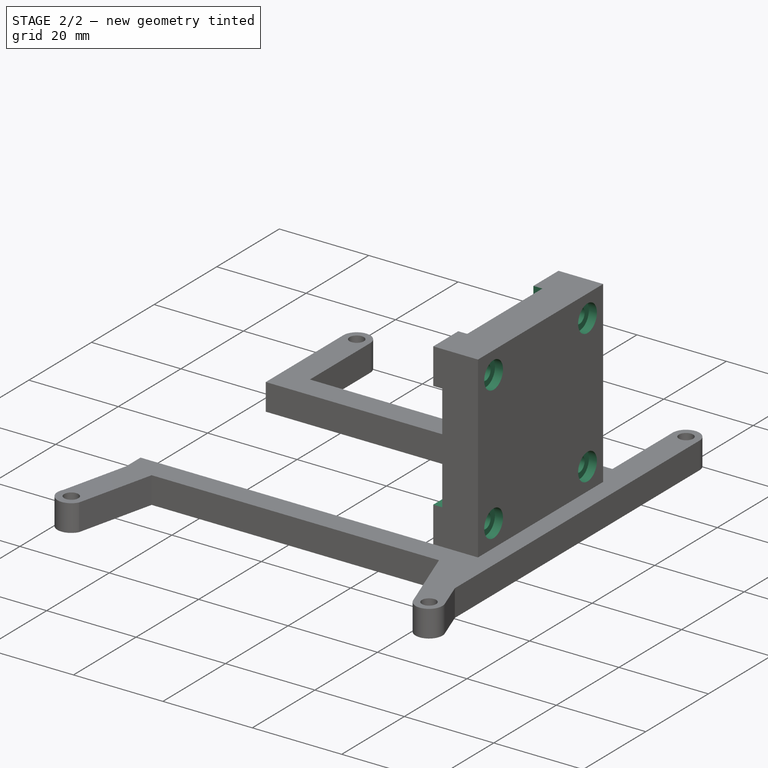
[diagram: stage 2 of 2 — iso view after this stage's code; geometry added in this stage tinted green]
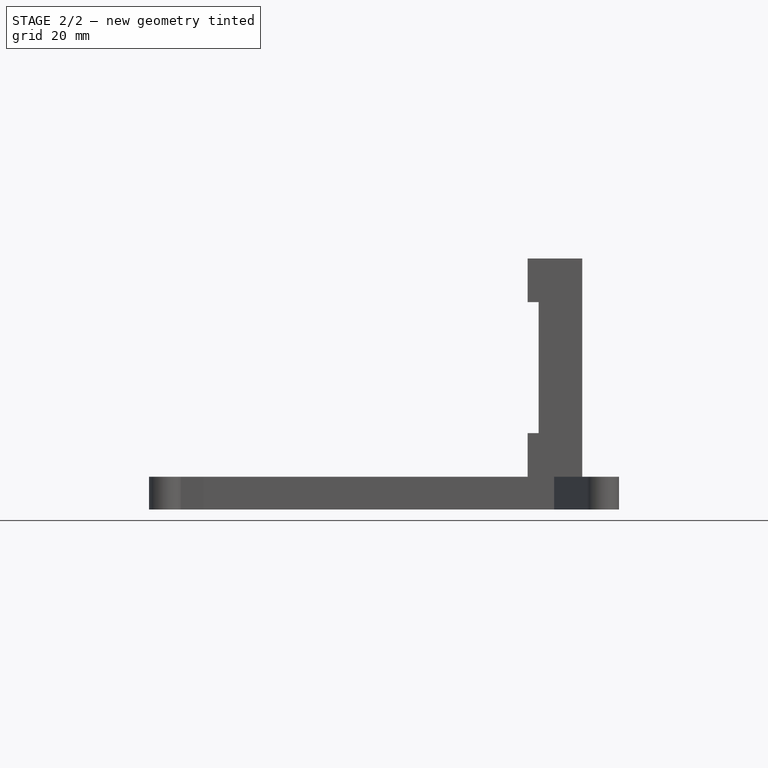
[diagram: stage 2 of 2 — front view after this stage's code; geometry added in this stage tinted green]
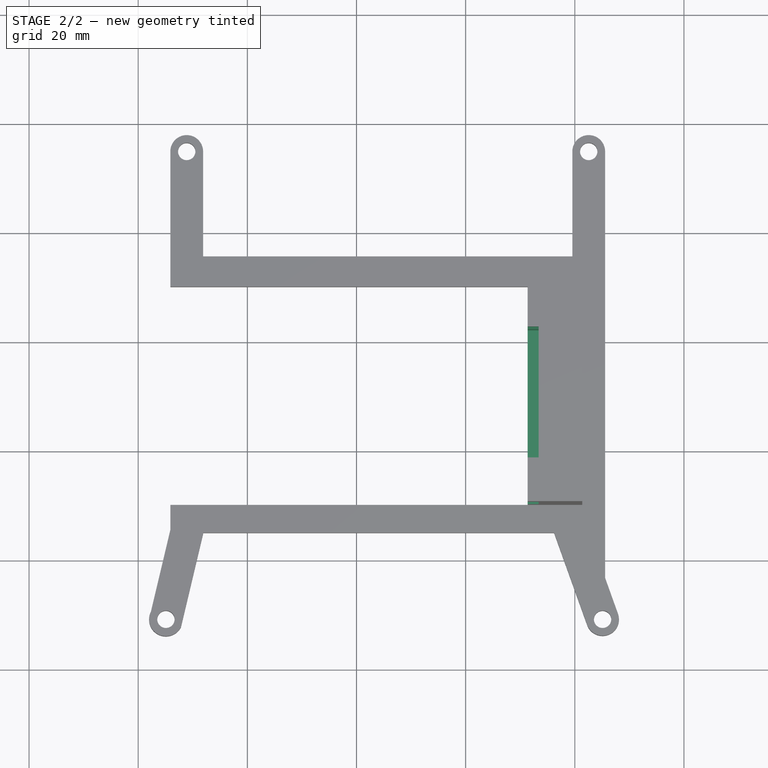
[diagram: stage 2 of 2 — top view after this stage's code; geometry added in this stage tinted green]
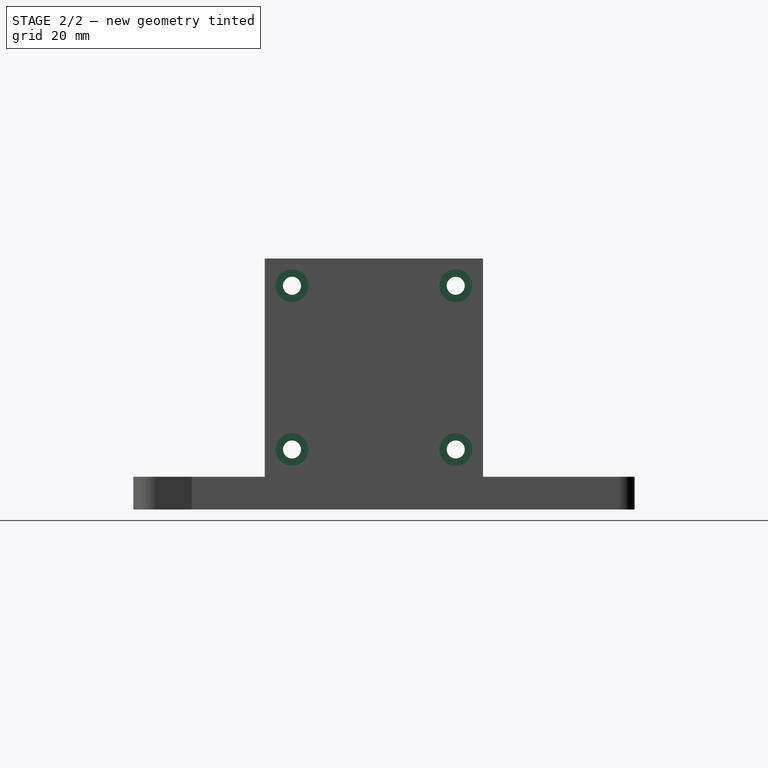
[diagram: stage 2 of 2 — right view after this stage's code; geometry added in this stage tinted green]
FEATURE [Sketcher::SketchObject] Sketch004
  ExternalGeometry = -> [Pad001]
  MapMode = 5
  Placement = pos=(71.3592,0,0) rot=(0.57735,-0.57735,-0.57735;2.0944rad)
  Support = -> [Pad001]
  sketch-geometry (25):
    g0: LineSegment [constr] StartX=29.8498 StartY=38 StartZ=0 EndX=69.8498 EndY=38 EndZ=0
    g1: LineSegment StartX=69.8498 StartY=38 StartZ=0 EndX=69.8498 EndY=14 EndZ=0
    g2: LineSegment [constr] StartX=69.8498 StartY=14 StartZ=0 EndX=29.8498 EndY=14 EndZ=0
    g3: LineSegment StartX=29.8498 StartY=14 StartZ=0 EndX=29.8498 EndY=38 EndZ=0
    g4: GeomPoint X=49.8498 Y=26 Z=0
    g5: LineSegment StartX=37.8498 StartY=46 StartZ=0 EndX=61.8498 EndY=46 EndZ=0
    g6: LineSegment [constr] StartX=61.8498 StartY=46 StartZ=0 EndX=61.8498 EndY=6 EndZ=0
    g7: LineSegment StartX=61.8498 StartY=6 StartZ=0 EndX=37.8498 EndY=6 EndZ=0
    g8: LineSegment [constr] StartX=37.8498 StartY=6 StartZ=0 EndX=37.8498 EndY=46 EndZ=0
    g9: LineSegment [constr] StartX=34.8498 StartY=41 StartZ=0 EndX=64.8498 EndY=41 EndZ=0
    g10: LineSegment [constr] StartX=64.8498 StartY=41 StartZ=0 EndX=64.8498 EndY=11 EndZ=0
    g11: LineSegment [constr] StartX=64.8498 StartY=11 StartZ=0 EndX=34.8498 EndY=11 EndZ=0
    g12: LineSegment [constr] StartX=34.8498 StartY=11 StartZ=0 EndX=34.8498 EndY=41 EndZ=0
    g13: ArcOfCircle CenterX=64.8498 CenterY=41 CenterZ=0 NormalX=0 NormalY=0 NormalZ=1 AngleXU=0 Radius=3 StartAngle=3.14159 EndAngle=4.71239
    g14: ArcOfCircle CenterX=34.8498 CenterY=41 CenterZ=0 NormalX=0 NormalY=0 NormalZ=1 AngleXU=0 Radius=3 StartAngle=4.71239 EndAngle=6.28319
    g15: ArcOfCircle CenterX=34.8498 CenterY=11 CenterZ=0 NormalX=0 NormalY=0 NormalZ=1 AngleXU=0 Radius=3 StartAngle=3e-16 EndAngle=1.5708
    g16: ArcOfCircle CenterX=64.8498 CenterY=11 CenterZ=0 NormalX=0 NormalY=0 NormalZ=1 AngleXU=0 Radius=3 StartAngle=1.5708 EndAngle=3.14159
    g17: LineSegment StartX=61.8498 StartY=41 StartZ=0 EndX=61.8498 EndY=46 EndZ=0
    g18: LineSegment StartX=37.8498 StartY=46 StartZ=0 EndX=37.8498 EndY=41 EndZ=0
    g19: LineSegment StartX=34.8498 StartY=38 StartZ=0 EndX=29.8498 EndY=38 EndZ=0
    g20: LineSegment StartX=34.8498 StartY=14 StartZ=0 EndX=29.8498 EndY=14 EndZ=0
    g21: LineSegment StartX=37.8498 StartY=11 StartZ=0 EndX=37.8498 EndY=6 EndZ=0
    g22: LineSegment StartX=61.8498 StartY=6 StartZ=0 EndX=61.8498 EndY=11 EndZ=0
    g23: LineSegment StartX=64.8498 StartY=14 StartZ=0 EndX=69.8498 EndY=14 EndZ=0
    g24: LineSegment StartX=64.8498 StartY=38 StartZ=0 EndX=69.8498 EndY=38 EndZ=0
  constraints (61):
    c: Coincident(g0,g1)
    c: Coincident(g1,g2)
    c: Coincident(g2,g3)
    c: Coincident(g3,g0)
    c: Horizontal(g0)
    c: Horizontal(g2)
    c: Vertical(g1)
    c: Vertical(g3)
    c: Symmetric(g0,g2,g4)
    c: Coincident(g5,g6)
    c: Coincident(g6,g7)
    c: Coincident(g7,g8)
    c: Coincident(g8,g5)
    c: Horizontal(g5)
    c: Horizontal(g7)
    c: Vertical(g6)
    c: Vertical(g8)
    c: Symmetric(g6,g5,g4)
    c: Equal(g5,g1)
    c: Coincident(g9,g10)
    c: Coincident(g10,g11)
    c: Coincident(g11,g12)
    c: Coincident(g12,g9)
    c: Horizontal(g9)
    c: Horizontal(g11)
    c: Vertical(g10)
    c: Vertical(g12)
    c: Symmetric(g9,g11,g4)
    c: DistanceX(g9,g9) = 30
    c: Equal(g9,g10)
    c: Coincident(g13,g9)
    c: Tangent(g13,g0) = -1.5708
    c: Coincident(g14,g9)
    c: Tangent(g14,g0) = -1.5708
    c: Coincident(g15,g11)
    c: Tangent(g15,g8) = -1.5708
    c: Coincident(g16,g10)
    c: PointOnObject(g16,g6)
    c: Tangent(g16,g2) = -1.5708
    c: Tangent(g13,g17) = 1.5708
    c: Coincident(g18,g5)
    c: Coincident(g18,g14)
    c: Coincident(g19,g14)
    c: Coincident(g19,g3)
    c: Coincident(g20,g15)
    c: Coincident(g20,g3)
    c: Coincident(g21,g15)
    c: Coincident(g21,g7)
    c: Coincident(g22,g7)
    c: Coincident(g22,g16)
    c: Coincident(g23,g16)
    c: Coincident(g23,g1)
    c: Coincident(g24,g13)
    c: Coincident(g24,g1)
    c: DistanceX(g13,g13) = 3
    c: Coincident(g17,g5)
    c: Vertical(g18)
    c: Horizontal(g20)
    c: Symmetric(g-3,g-4,g4)
    c: PointOnObject(g5,g-3)
    c: Vertical(g1,g-3)
FEATURE [PartDesign::Pocket] Pocket
  BaseFeature = -> Pad001
  Length = 2
  Length2 = 100
  Profile = -> Sketch004
  Type = 0
FEATURE [Sketcher::SketchObject] Sketch005
  ExternalGeometry = -> [Pocket]
  MapMode = 5
  Placement = pos=(81.3592,0,0) rot=(0.57735,0.57735,0.57735;2.0944rad)
  Support = -> [Pocket]
  sketch-geometry (10):
    g0: GeomPoint X=-49.8498 Y=26 Z=0
    g1: LineSegment [constr] StartX=-64.8498 StartY=41 StartZ=0 EndX=-34.8498 EndY=41 EndZ=0
    g2: LineSegment [constr] StartX=-34.8498 StartY=41 StartZ=0 EndX=-34.8498 EndY=11 EndZ=0
    g3: LineSegment [constr] StartX=-34.8498 StartY=11 StartZ=0 EndX=-64.8498 EndY=11 EndZ=0
    g4: LineSegment [constr] StartX=-64.8498 StartY=11 StartZ=0 EndX=-64.8498 EndY=41 EndZ=0
    g5: LineSegment [constr] StartX=-29.8498 StartY=46 StartZ=0 EndX=-69.8498 EndY=6 EndZ=0
    g6: Circle CenterX=-64.8498 CenterY=41 CenterZ=0 NormalX=0 NormalY=0 NormalZ=1 AngleXU=0 Radius=1.5
    g7: Circle CenterX=-34.8498 CenterY=41 CenterZ=0 NormalX=0 NormalY=0 NormalZ=1 AngleXU=0 Radius=1.5
    g8: Circle CenterX=-64.8498 CenterY=11 CenterZ=0 NormalX=0 NormalY=0 NormalZ=1 AngleXU=0 Radius=1.5
    g9: Circle CenterX=-34.8498 CenterY=11 CenterZ=0 NormalX=0 NormalY=0 NormalZ=1 AngleXU=0 Radius=1.5
  constraints (21):
    c: Coincident(g1,g2)
    c: Coincident(g2,g3)
    c: Coincident(g3,g4)
    c: Coincident(g4,g1)
    c: Horizontal(g1)
    c: Horizontal(g3)
    c: Vertical(g2)
    c: Vertical(g4)
    c: Symmetric(g1,g3,g0)
    c: Coincident(g5,g-3)
    c: PointOnObject(g1,g5)
    c: DistanceX(g1,g1) = 30
    c: Diameter(g6) = 3
    c: Equal(g6,g7) = 3
    c: Coincident(g7,g1)
    c: Equal(g6,g8) = 3
    c: Coincident(g8,g3)
    c: Coincident(g9,g2)
    c: Coincident(g6,g1)
    c: Coincident(g5,g-5)
    c: Symmetric(g5,g5,g0)
FEATURE [PartDesign::Hole] Hole
  BaseFeature = -> Pocket
  Depth = 25
  DepthType = 0
  Diameter = 3.3
  DrillPoint = 1
  DrillPointAngle = 118
  HoleCutCountersinkAngle = 90
  HoleCutDepth = 1.8
  HoleCutDiameter = 6
  HoleCutType = 1
  ModelActualThread = false
  Profile = -> Sketch005
  Tapered = false
  TaperedAngle = 90
  ThreadAngle = 60
  ThreadClass = 0
  ThreadCutOffInner = 0.0216506
  ThreadCutOffOuter = 0.0433013
  ThreadDirection = 0
  ThreadFit = 0
  ThreadPitch = 0.2
  ThreadSize = 9
  ThreadType = 2
  Threaded = false
FEATURE [PartDesign::Body] Body
  Group = -> [Sketch,Sketch002,Pad,Sketch003,Pad001,Sketch004,Pocket,Sketch005,Hole]
  Origin = -> Origin001
  Tip = -> Hole
FEATURE [App::Part] Part  label="holder"
  Group = -> [Body]
  Origin = -> Origin
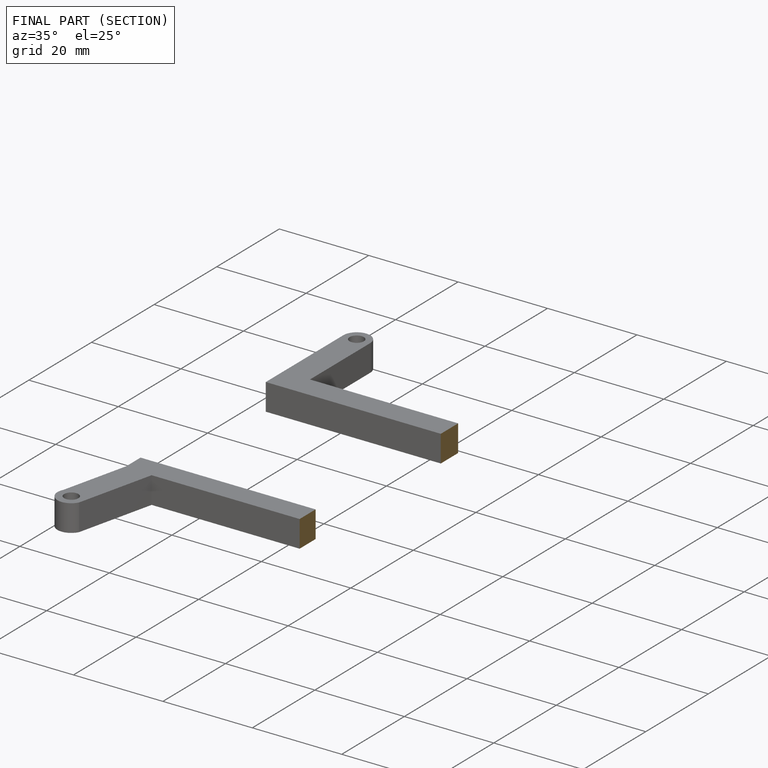
[diagram: finished part — half-section view (interior)]
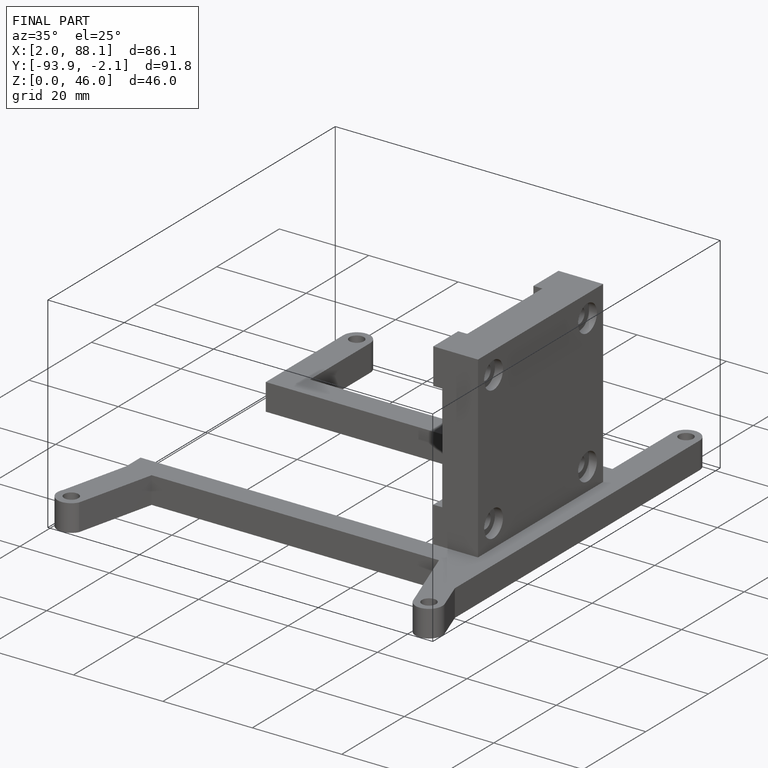
[diagram: finished part — iso view with bounding-box wireframe]
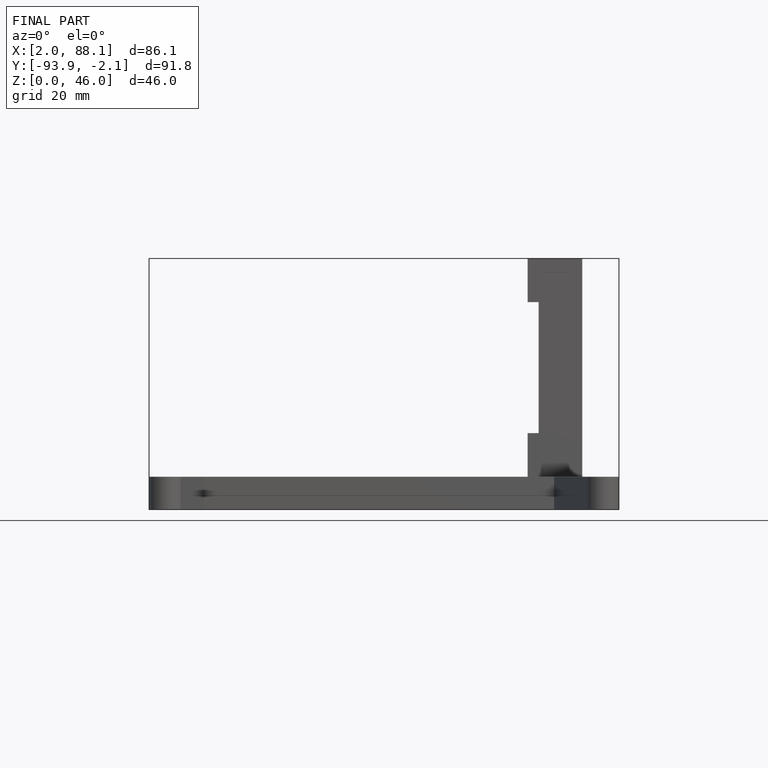
[diagram: finished part — front view with bounding-box wireframe]
